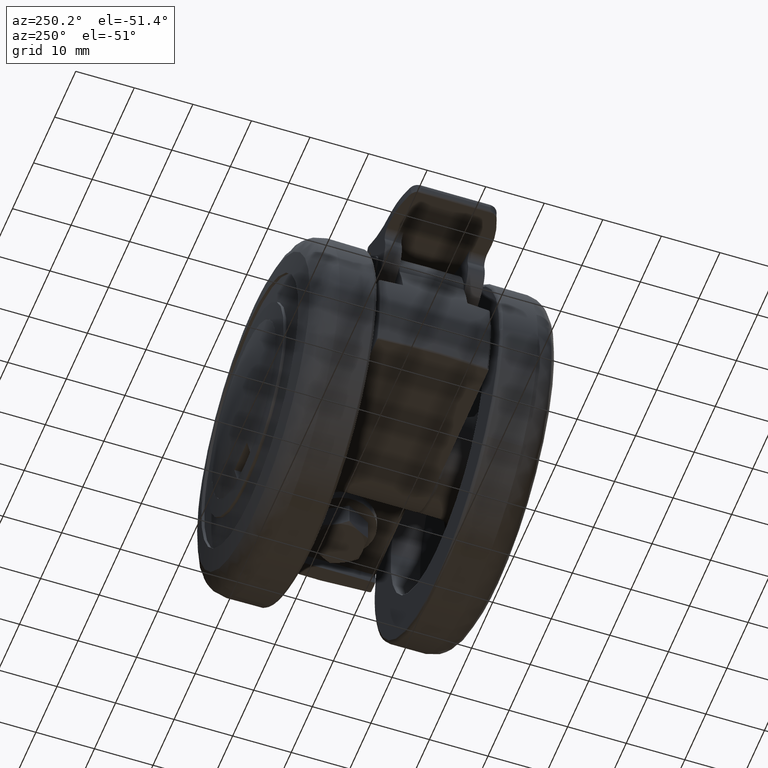
[diagram: clean part render]
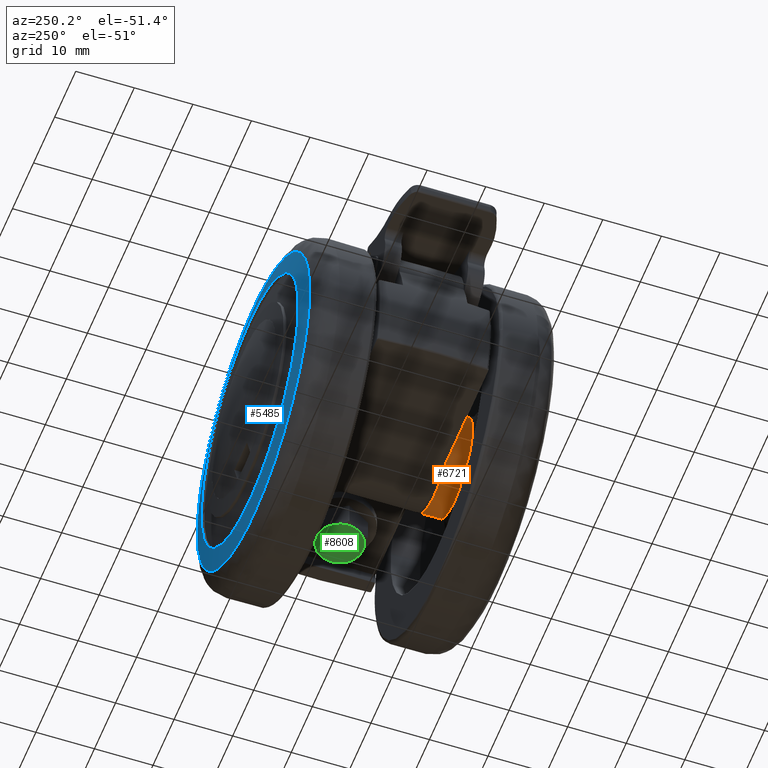
[diagram: same view with three faces highlighted in distinct colors, each labeled with its STEP entity id]
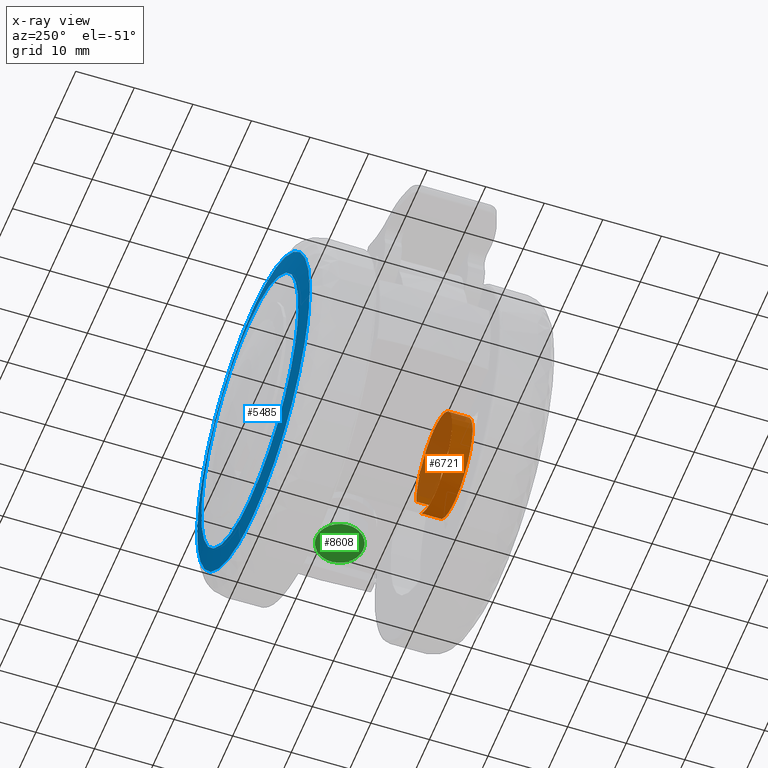
[diagram: x-ray of the same camera — body ghosted, the three highlighted faces saturated]
A machine part, auxiliary view with three faces highlighted in distinct colors.
The next image is the same camera in x-ray (body ghosted, the three faces saturated) — at least one of them is partly hidden behind the body in this view.
Their STEP definitions:

[orange] entity #6721 — the highlighted face is a freeform B-spline surface patch.
#6525=CARTESIAN_POINT('',(6.155301365099552,-13.587500000692314,-5.861933563663406));
#6526=CARTESIAN_POINT('',(3.612635184048401,-13.587500000692309,-8.531850655906197));
#6527=CARTESIAN_POINT('',(-0.074175551736178,-13.587500000692311,-8.499676346045455));
#6528=CARTESIAN_POINT('',(-8.573851897781633,-13.587500000692309,-8.425500794309276));
#6529=CARTESIAN_POINT('',(-8.499676346045455,-13.587500000692311,0.074175551736178));
#6530=CARTESIAN_POINT('',(-8.425500794309276,-13.587500000692309,8.573851897781633));
#6531=CARTESIAN_POINT('',(0.074175551736178,-13.587500000692311,8.499676346045455));
#6532=CARTESIAN_POINT('',(8.573851897781633,-13.587500000692309,8.425500794309276));
#6533=CARTESIAN_POINT('',(8.499676346045455,-13.587500000692311,-0.074175551736178));
#6534=CARTESIAN_POINT('',(6.155301365099552,-9.910312497142067,-5.861933563663406));
#6535=CARTESIAN_POINT('',(3.612635184048401,-9.910312497142069,-8.531850655906197));
#6536=CARTESIAN_POINT('',(-0.074175551736178,-9.910312497142069,-8.499676346045455));
#6537=CARTESIAN_POINT('',(-8.573851897781633,-9.910312497142069,-8.425500794309276));
#6538=CARTESIAN_POINT('',(-8.499676346045455,-9.910312497142069,0.074175551736178));
#6539=CARTESIAN_POINT('',(-8.425500794309276,-9.910312497142069,8.573851897781633));
#6540=CARTESIAN_POINT('',(0.074175551736178,-9.910312497142069,8.499676346045455));
#6541=CARTESIAN_POINT('',(8.573851897781633,-9.910312497142069,8.425500794309276));
#6542=CARTESIAN_POINT('',(8.499676346045455,-9.910312497142069,-0.074175551736178));
#6550=(BOUNDED_SURFACE()B_SPLINE_SURFACE(2,1,((#6525,#6534),(#6526,#6535),(#6527,#6536),(#6528,#6537),(#6529,#6538),(#6530,#6539),(#6531,#6540),(#6532,#6541),(#6533,#6542)),.UNSPECIFIED.,.F.,.F.,.U.)B_SPLINE_SURFACE_WITH_KNOTS((3,2,2,2,3),(2,2),(0.0,7.323295782756319,21.406556903441551,35.489818024126777,49.573079144812013),(0.0,3.677187503550244),.UNSPECIFIED.)GEOMETRIC_REPRESENTATION_ITEM()RATIONAL_B_SPLINE_SURFACE(((0.853787705168325,0.853787705168325),(0.847695526217005,0.847695526217005),(1.0,1.0),(0.707106781186548,0.707106781186548),(1.0,1.0),(0.707106781186548,0.707106781186548),(1.0,1.0),(0.707106781186548,0.707106781186548),(1.0,1.0)))REPRESENTATION_ITEM('')SURFACE());
#6551=CARTESIAN_POINT('',(6.155301829002491,-13.500000000000020,-5.861933076543788));
#6552=VERTEX_POINT('',#6551);
#6553=CARTESIAN_POINT('',(0.0,-13.500000000000000,-8.500000000000000));
#6554=VERTEX_POINT('',#6553);
#6555=CARTESIAN_POINT('',(6.155301829002492,-13.500000000000023,-5.861933076543788));
#6556=CARTESIAN_POINT('',(3.642968602165949,-13.500000000000004,-8.500000000000000));
#6557=CARTESIAN_POINT('',(0.0,-13.500000000000000,-8.500000000000000));
#6565=(BOUNDED_CURVE()B_SPLINE_CURVE(2,(#6555,#6556,#6557),.UNSPECIFIED.,.F.,.U.)B_SPLINE_CURVE_WITH_KNOTS((3,3),(0.871316999963881,1.0),.UNSPECIFIED.)CURVE()GEOMETRIC_REPRESENTATION_ITEM()RATIONAL_B_SPLINE_CURVE((0.853680524894800,0.849238487651398,1.0))REPRESENTATION_ITEM(''));
#6566=EDGE_CURVE('',#6552,#6554,#6565,.T.);
#6567=ORIENTED_EDGE('',*,*,#6566,.T.);
#6568=CARTESIAN_POINT('',(-3.003066716672469,-13.500000000569329,-7.951829367838196));
#6569=VERTEX_POINT('',#6568);
#6570=CARTESIAN_POINT('',(0.0,-13.500000000000000,-8.500000000000000));
#6571=CARTESIAN_POINT('',(-1.551564055373498,-13.499999999999998,-8.500000000000000));
#6572=CARTESIAN_POINT('',(-3.003066716672470,-13.500000000569331,-7.951829367838196));
#6580=(BOUNDED_CURVE()B_SPLINE_CURVE(2,(#6570,#6571,#6572),.UNSPECIFIED.,.F.,.U.)B_SPLINE_CURVE_WITH_KNOTS((3,3),(0.0,0.060000000002447),.UNSPECIFIED.)CURVE()GEOMETRIC_REPRESENTATION_ITEM()RATIONAL_B_SPLINE_CURVE((1.0,0.929705627481905,0.893152553773871))REPRESENTATION_ITEM(''));
#6581=EDGE_CURVE('',#6554,#6569,#6580,.T.);
#6582=ORIENTED_EDGE('',*,*,#6581,.T.);
#6583=CARTESIAN_POINT('',(-8.500000000000000,-13.500000000607830,4.437074E-016));
#6584=VERTEX_POINT('',#6583);
#6585=CARTESIAN_POINT('',(-3.003066716672470,-13.500000000569324,-7.951829367838196));
#6586=CARTESIAN_POINT('',(-8.500000000000007,-13.500000000000000,-5.875872173122279));
#6587=CARTESIAN_POINT('',(-8.500000000000004,-13.500000000607839,4.437074E-016));
#6595=(BOUNDED_CURVE()B_SPLINE_CURVE(2,(#6585,#6586,#6587),.UNSPECIFIED.,.F.,.U.)B_SPLINE_CURVE_WITH_KNOTS((3,3),(0.060000000002447,0.250000000000000),.UNSPECIFIED.)CURVE()GEOMETRIC_REPRESENTATION_ITEM()RATIONAL_B_SPLINE_CURVE((0.893152553773871,0.777401153704643,1.0))REPRESENTATION_ITEM(''));
#6596=EDGE_CURVE('',#6569,#6584,#6595,.T.);
#6597=ORIENTED_EDGE('',*,*,#6596,.T.);
#6598=CARTESIAN_POINT('',(0.0,-13.500000000000000,8.500000000000000));
#6599=VERTEX_POINT('',#6598);
#6600=CARTESIAN_POINT('',(-8.500000000000000,-13.500000000607834,4.437074E-016));
#6601=CARTESIAN_POINT('',(-8.499999999999996,-13.500000000000000,8.499999999999998));
#6602=CARTESIAN_POINT('',(0.0,-13.500000000000000,8.500000000000000));
#6610=(BOUNDED_CURVE()B_SPLINE_CURVE(2,(#6600,#6601,#6602),.UNSPECIFIED.,.F.,.U.)B_SPLINE_CURVE_WITH_KNOTS((3,3),(0.250000000000000,0.500000000000000),.UNSPECIFIED.)CURVE()GEOMETRIC_REPRESENTATION_ITEM()RATIONAL_B_SPLINE_CURVE((1.000000000000000,0.707106781186548,1.0))REPRESENTATION_ITEM(''));
#6611=EDGE_CURVE('',#6584,#6599,#6610,.T.);
#6612=ORIENTED_EDGE('',*,*,#6611,.T.);
#6613=CARTESIAN_POINT('',(8.499676346044717,-13.500000000000000,-0.074175551820762));
#6614=VERTEX_POINT('',#6613);
#6615=CARTESIAN_POINT('',(0.0,-13.500000000000000,8.500000000000000));
#6616=CARTESIAN_POINT('',(8.500000000000002,-13.500000000000000,8.500000000000002));
#6617=CARTESIAN_POINT('',(8.500000000000000,-13.500000000000000,0.0));
#6618=CARTESIAN_POINT('',(8.500000000000000,-13.500000000000002,-0.037088482060550));
#6619=CARTESIAN_POINT('',(8.499676346044717,-13.499999999999998,-0.074175551820762));
#6627=(BOUNDED_CURVE()B_SPLINE_CURVE(2,(#6615,#6616,#6617,#6618,#6619),.UNSPECIFIED.,.F.,.U.)B_SPLINE_CURVE_WITH_KNOTS((3,2,3),(0.500000000000000,0.750000000000000,0.751539894338493),.UNSPECIFIED.)CURVE()GEOMETRIC_REPRESENTATION_ITEM()RATIONAL_B_SPLINE_CURVE((1.0,0.707106781186548,1.0,0.998195901562265,0.996414028092293))REPRESENTATION_ITEM(''));
#6628=EDGE_CURVE('',#6599,#6614,#6627,.T.);
#6629=ORIENTED_EDGE('',*,*,#6628,.T.);
#6630=CARTESIAN_POINT('',(8.499676346044819,-10.0,-0.074175551809084));
#6631=VERTEX_POINT('',#6630);
#6632=CARTESIAN_POINT('',(8.499676346044717,-13.500000000000000,-0.074175551820762));
#6633=CARTESIAN_POINT('',(8.499676346044819,-10.0,-0.074175551809084));
#6634=QUASI_UNIFORM_CURVE('',1,(#6632,#6633),.UNSPECIFIED.,.F.,.U.);
#6635=EDGE_CURVE('',#6614,#6631,#6634,.T.);
#6636=ORIENTED_EDGE('',*,*,#6635,.T.);
#6637=CARTESIAN_POINT('',(0.0,-10.0,8.500000000000000));
#6638=VERTEX_POINT('',#6637);
#6639=CARTESIAN_POINT('',(8.499676346044819,-10.0,-0.074175551809084));
#6640=CARTESIAN_POINT('',(8.500000000000002,-10.000000000000002,-0.037088482048874));
#6641=CARTESIAN_POINT('',(8.500000000000000,-10.0,0.0));
#6642=CARTESIAN_POINT('',(8.500000000000002,-10.000000000000002,8.500000000000002));
#6643=CARTESIAN_POINT('',(0.0,-10.0,8.500000000000000));
#6651=(BOUNDED_CURVE()B_SPLINE_CURVE(2,(#6639,#6640,#6641,#6642,#6643),.UNSPECIFIED.,.F.,.U.)B_SPLINE_CURVE_WITH_KNOTS((3,2,3),(0.248460105661991,0.250000000000000,0.500000000000000),.UNSPECIFIED.)CURVE()GEOMETRIC_REPRESENTATION_ITEM()RATIONAL_B_SPLINE_CURVE((0.996414028093413,0.998195901562832,1.0,0.707106781186548,1.0))REPRESENTATION_ITEM(''));
#6652=EDGE_CURVE('',#6631,#6638,#6651,.T.);
#6653=ORIENTED_EDGE('',*,*,#6652,.T.);
#6654=CARTESIAN_POINT('',(-8.500000000000000,-9.999999997410585,4.573965E-014));
#6655=VERTEX_POINT('',#6654);
#6656=CARTESIAN_POINT('',(0.0,-10.0,8.500000000000000));
#6657=CARTESIAN_POINT('',(-8.499999999999957,-10.0,8.500000000000000));
#6658=CARTESIAN_POINT('',(-8.500000000000000,-9.999999997410585,4.573965E-014));
#6666=(BOUNDED_CURVE()B_SPLINE_CURVE(2,(#6656,#6657,#6658),.UNSPECIFIED.,.F.,.U.)B_SPLINE_CURVE_WITH_KNOTS((3,3),(0.500000000000000,0.749999999999999),.UNSPECIFIED.)CURVE()GEOMETRIC_REPRESENTATION_ITEM()RATIONAL_B_SPLINE_CURVE((1.0,0.707106781186549,0.999999999999998))REPRESENTATION_ITEM(''));
#6667=EDGE_CURVE('',#6638,#6655,#6666,.T.);
#6668=ORIENTED_EDGE('',*,*,#6667,.T.);
#6669=CARTESIAN_POINT('',(-3.003066716634145,-9.999999997228660,-7.951829367852669));
#6670=VERTEX_POINT('',#6669);
#6671=CARTESIAN_POINT('',(-8.500000000000004,-9.999999997410590,4.573965E-014));
#6672=CARTESIAN_POINT('',(-8.500000000000062,-10.0,-5.875872173182831));
#6673=CARTESIAN_POINT('',(-3.003066716634146,-9.999999997228658,-7.951829367852669));
#6681=(BOUNDED_CURVE()B_SPLINE_CURVE(2,(#6671,#6672,#6673),.UNSPECIFIED.,.F.,.U.)B_SPLINE_CURVE_WITH_KNOTS((3,3),(0.749999999999998,0.939999999999076),.UNSPECIFIED.)CURVE()GEOMETRIC_REPRESENTATION_ITEM()RATIONAL_B_SPLINE_CURVE((1.000000000000004,0.777401153702858,0.893152553775726))REPRESENTATION_ITEM(''));
#6682=EDGE_CURVE('',#6655,#6670,#6681,.T.);
#6683=ORIENTED_EDGE('',*,*,#6682,.T.);
#6684=CARTESIAN_POINT('',(0.0,-10.0,-8.500000000000000));
#6685=VERTEX_POINT('',#6684);
#6686=CARTESIAN_POINT('',(-3.003066716634145,-9.999999997228658,-7.951829367852669));
#6687=CARTESIAN_POINT('',(-1.551564055331168,-10.0,-8.500000000000000));
#6688=CARTESIAN_POINT('',(0.0,-10.0,-8.500000000000000));
#6696=(BOUNDED_CURVE()B_SPLINE_CURVE(2,(#6686,#6687,#6688),.UNSPECIFIED.,.F.,.U.)B_SPLINE_CURVE_WITH_KNOTS((3,3),(0.939999999999075,1.0),.UNSPECIFIED.)CURVE()GEOMETRIC_REPRESENTATION_ITEM()RATIONAL_B_SPLINE_CURVE((0.893152553775725,0.929705627483688,1.0))REPRESENTATION_ITEM(''));
#6697=EDGE_CURVE('',#6670,#6685,#6696,.T.);
#6698=ORIENTED_EDGE('',*,*,#6697,.T.);
#6699=CARTESIAN_POINT('',(6.155301591505830,-10.0,-5.861933325926326));
#6700=VERTEX_POINT('',#6699);
#6701=CARTESIAN_POINT('',(0.0,-10.0,-8.500000000000000));
#6702=CARTESIAN_POINT('',(3.642968194530800,-10.0,-8.500000000000002));
#6703=CARTESIAN_POINT('',(6.155301591505830,-10.0,-5.861933325926327));
#6711=(BOUNDED_CURVE()B_SPLINE_CURVE(2,(#6701,#6702,#6703),.UNSPECIFIED.,.F.,.U.)B_SPLINE_CURVE_WITH_KNOTS((3,3),(0.0,0.128682987807792),.UNSPECIFIED.)CURVE()GEOMETRIC_REPRESENTATION_ITEM()RATIONAL_B_SPLINE_CURVE((1.0,0.849238501977774,0.853680524050577))REPRESENTATION_ITEM(''));
#6712=EDGE_CURVE('',#6685,#6700,#6711,.T.);
#6713=ORIENTED_EDGE('',*,*,#6712,.T.);
#6714=CARTESIAN_POINT('',(6.155301829002491,-13.500000000000020,-5.861933076543788));
#6715=CARTESIAN_POINT('',(6.155301591505830,-10.0,-5.861933325926326));
#6716=QUASI_UNIFORM_CURVE('',1,(#6714,#6715),.UNSPECIFIED.,.F.,.U.);
#6717=EDGE_CURVE('',#6552,#6700,#6716,.T.);
#6718=ORIENTED_EDGE('',*,*,#6717,.F.);
#6719=EDGE_LOOP('',(#6567,#6582,#6597,#6612,#6629,#6636,#6653,#6668,#6683,#6698,#6713,#6718));
#6720=FACE_OUTER_BOUND('',#6719,.T.);
#6721=ADVANCED_FACE('',(#6720),#6550,.T.);

[blue] entity #5485 — the highlighted face is a freeform B-spline surface patch.
#3889=CARTESIAN_POINT('',(-22.929098987231040,21.478063524577699,-1.804555245412127));
#3890=VERTEX_POINT('',#3889);
#3896=CARTESIAN_POINT('',(0.0,21.478063524577699,23.000000000000011));
#3897=VERTEX_POINT('',#3896);
#3898=CARTESIAN_POINT('',(-22.929098987231050,21.478063524577699,-1.804555245412127));
#3899=CARTESIAN_POINT('',(-23.000000000000007,21.478063524577699,-0.903670473832242));
#3900=CARTESIAN_POINT('',(-23.0,21.478063524577699,7.890652E-015));
#3901=CARTESIAN_POINT('',(-22.999999999999993,21.478063524577699,23.000000000000007));
#3902=CARTESIAN_POINT('',(0.0,21.478063524577699,23.000000000000011));
#3910=(BOUNDED_CURVE()B_SPLINE_CURVE(2,(#3898,#3899,#3900,#3901,#3902),.UNSPECIFIED.,.F.,.U.)B_SPLINE_CURVE_WITH_KNOTS((3,2,3),(0.736331330211408,0.750000000000000,1.0),.UNSPECIFIED.)CURVE()GEOMETRIC_REPRESENTATION_ITEM()RATIONAL_B_SPLINE_CURVE((0.969723417900191,0.983986157234884,1.0,0.707106781186548,1.0))REPRESENTATION_ITEM(''));
#3911=EDGE_CURVE('',#3890,#3897,#3910,.T.);
#3913=CARTESIAN_POINT('',(22.929098987231040,21.478063524577699,1.804555245412127));
#3914=VERTEX_POINT('',#3913);
#3915=CARTESIAN_POINT('',(0.0,21.478063524577699,23.000000000000011));
#3916=CARTESIAN_POINT('',(21.260984987983782,21.478063524577703,23.000000000000007));
#3917=CARTESIAN_POINT('',(22.929098987231040,21.478063524577699,1.804555245412127));
#3925=(BOUNDED_CURVE()B_SPLINE_CURVE(2,(#3915,#3916,#3917),.UNSPECIFIED.,.F.,.U.)B_SPLINE_CURVE_WITH_KNOTS((3,3),(0.0,0.236331330211408),.UNSPECIFIED.)CURVE()GEOMETRIC_REPRESENTATION_ITEM()RATIONAL_B_SPLINE_CURVE((1.0,0.723120623951663,0.969723417900191))REPRESENTATION_ITEM(''));
#3926=EDGE_CURVE('',#3897,#3914,#3925,.T.);
#3972=CARTESIAN_POINT('',(0.0,21.478063524577699,-22.999999999999989));
#3973=VERTEX_POINT('',#3972);
#3974=CARTESIAN_POINT('',(22.929098987231040,21.478063524577699,1.804555245412127));
#3975=CARTESIAN_POINT('',(23.0,21.478063524577696,0.903670473832250));
#3976=CARTESIAN_POINT('',(23.0,21.478063524577699,7.890652E-015));
#3977=CARTESIAN_POINT('',(22.999999999999993,21.478063524577699,-22.999999999999993));
#3978=CARTESIAN_POINT('',(0.0,21.478063524577699,-22.999999999999989));
#3986=(BOUNDED_CURVE()B_SPLINE_CURVE(2,(#3974,#3975,#3976,#3977,#3978),.UNSPECIFIED.,.F.,.U.)B_SPLINE_CURVE_WITH_KNOTS((3,2,3),(0.236331330211408,0.250000000000000,0.500000000000000),.UNSPECIFIED.)CURVE()GEOMETRIC_REPRESENTATION_ITEM()RATIONAL_B_SPLINE_CURVE((0.969723417900191,0.983986157234884,1.0,0.707106781186548,1.0))REPRESENTATION_ITEM(''));
#3987=EDGE_CURVE('',#3914,#3973,#3986,.T.);
#3989=CARTESIAN_POINT('',(0.0,21.478063524577699,-22.999999999999989));
#3990=CARTESIAN_POINT('',(-21.260984987983761,21.478063524577696,-22.999999999999986));
#3991=CARTESIAN_POINT('',(-22.929098987231050,21.478063524577699,-1.804555245412127));
#3999=(BOUNDED_CURVE()B_SPLINE_CURVE(2,(#3989,#3990,#3991),.UNSPECIFIED.,.F.,.U.)B_SPLINE_CURVE_WITH_KNOTS((3,3),(0.500000000000000,0.736331330211408),.UNSPECIFIED.)CURVE()GEOMETRIC_REPRESENTATION_ITEM()RATIONAL_B_SPLINE_CURVE((1.0,0.723120623951664,0.969723417900191))REPRESENTATION_ITEM(''));
#4000=EDGE_CURVE('',#3973,#3890,#3999,.T.);
#5021=CARTESIAN_POINT('',(26.065071559120351,20.854227348020441,5.844705521983595));
#5022=VERTEX_POINT('',#5021);
#5036=CARTESIAN_POINT('',(0.0,20.854227333449700,26.712329319606411));
#5037=VERTEX_POINT('',#5036);
#5038=CARTESIAN_POINT('',(0.0,20.854227333449700,26.712329319606411));
#5039=CARTESIAN_POINT('',(21.385816566820569,20.854227333449693,26.712329319606411));
#5040=CARTESIAN_POINT('',(26.065071559120348,20.854227348020441,5.844705521983596));
#5048=(BOUNDED_CURVE()B_SPLINE_CURVE(2,(#5038,#5039,#5040),.UNSPECIFIED.,.F.,.U.)B_SPLINE_CURVE_WITH_KNOTS((3,3),(0.0,0.212563823273568),.UNSPECIFIED.)CURVE()GEOMETRIC_REPRESENTATION_ITEM()RATIONAL_B_SPLINE_CURVE((1.0,0.750965990392444,0.925416950443516))REPRESENTATION_ITEM(''));
#5049=EDGE_CURVE('',#5037,#5022,#5048,.T.);
#5051=CARTESIAN_POINT('',(-26.356679879683540,20.854227348631529,-4.344417516797684));
#5052=VERTEX_POINT('',#5051);
#5053=CARTESIAN_POINT('',(-26.356679879683547,20.854227348631522,-4.344417516797684));
#5054=CARTESIAN_POINT('',(-26.712329319606397,20.854227333449703,-2.186766121231665));
#5055=CARTESIAN_POINT('',(-26.712329319606400,20.854227333449700,7.661466E-015));
#5056=CARTESIAN_POINT('',(-26.712329319606397,20.854227333449693,26.712329319606397));
#5057=CARTESIAN_POINT('',(0.0,20.854227333449700,26.712329319606411));
#5065=(BOUNDED_CURVE()B_SPLINE_CURVE(2,(#5053,#5054,#5055,#5056,#5057),.UNSPECIFIED.,.F.,.U.)B_SPLINE_CURVE_WITH_KNOTS((3,2,3),(0.722006108799314,0.750000000000000,1.0),.UNSPECIFIED.)CURVE()GEOMETRIC_REPRESENTATION_ITEM()RATIONAL_B_SPLINE_CURVE((0.941751131923491,0.967203116396471,1.0,0.707106781186548,1.0))REPRESENTATION_ITEM(''));
#5066=EDGE_CURVE('',#5052,#5037,#5065,.T.);
#5119=CARTESIAN_POINT('',(0.0,20.854227333449700,-26.712329319606390));
#5120=VERTEX_POINT('',#5119);
#5121=CARTESIAN_POINT('',(0.0,20.854227333449700,-26.712329319606390));
#5122=CARTESIAN_POINT('',(-22.669737959272577,20.854227333449700,-26.712329319606393));
#5123=CARTESIAN_POINT('',(-26.356679879683544,20.854227348631529,-4.344417516797684));
#5131=(BOUNDED_CURVE()B_SPLINE_CURVE(2,(#5121,#5122,#5123),.UNSPECIFIED.,.F.,.U.)B_SPLINE_CURVE_WITH_KNOTS((3,3),(0.500000000000000,0.722006108799315),.UNSPECIFIED.)CURVE()GEOMETRIC_REPRESENTATION_ITEM()RATIONAL_B_SPLINE_CURVE((1.0,0.739903664790076,0.941751131923493))REPRESENTATION_ITEM(''));
#5132=EDGE_CURVE('',#5120,#5052,#5131,.T.);
#5134=CARTESIAN_POINT('',(26.065071559120351,20.854227348020434,5.844705521983595));
#5135=CARTESIAN_POINT('',(26.712329319606404,20.854227333449700,2.958192257836088));
#5136=CARTESIAN_POINT('',(26.712329319606400,20.854227333449700,7.661466E-015));
#5137=CARTESIAN_POINT('',(26.712329319606397,20.854227333449693,-26.712329319606397));
#5138=CARTESIAN_POINT('',(0.0,20.854227333449700,-26.712329319606390));
#5146=(BOUNDED_CURVE()B_SPLINE_CURVE(2,(#5134,#5135,#5136,#5137,#5138),.UNSPECIFIED.,.F.,.U.)B_SPLINE_CURVE_WITH_KNOTS((3,2,3),(0.212563823273567,0.250000000000000,0.500000000000000),.UNSPECIFIED.)CURVE()GEOMETRIC_REPRESENTATION_ITEM()RATIONAL_B_SPLINE_CURVE((0.925416950443515,0.956140790794104,1.0,0.707106781186548,1.0))REPRESENTATION_ITEM(''));
#5147=EDGE_CURVE('',#5022,#5120,#5146,.T.);
#5449=CARTESIAN_POINT('',(-29.049700462980695,17.516002156330767,29.051323620715696));
#5450=CARTESIAN_POINT('',(-14.665037291293439,20.356101760267556,29.331713406281040));
#5451=CARTESIAN_POINT('',(14.663489103366622,20.356101760267556,29.331713406281040));
#5452=CARTESIAN_POINT('',(29.046692309353446,17.516596052487230,29.051382253312855));
#5453=CARTESIAN_POINT('',(-29.330106217824131,20.356422215040194,14.665872521642957));
#5454=CARTESIAN_POINT('',(-14.807972890327511,23.251884999999959,14.808800288729341));
#5455=CARTESIAN_POINT('',(14.806409612690089,23.251884999999959,14.808800288729341));
#5456=CARTESIAN_POINT('',(29.327069598959490,20.357027631852848,14.665902406631844));
#5457=CARTESIAN_POINT('',(-29.330106217824131,20.356422215040194,-14.665873821931163));
#5458=CARTESIAN_POINT('',(-14.807972890327511,23.251884999999959,-14.808801601689639));
#5459=CARTESIAN_POINT('',(14.806409612690089,23.251884999999959,-14.808801601689639));
#5460=CARTESIAN_POINT('',(29.327069598959490,20.357027631852848,-14.665903706922700));
#5461=CARTESIAN_POINT('',(-29.049700413734055,17.516001657478075,-29.051326147180330));
#5462=CARTESIAN_POINT('',(-14.665037266192506,20.356101251738988,-29.331715956649987));
#5463=CARTESIAN_POINT('',(14.663489078268340,20.356101251738988,-29.331715956649987));
#5464=CARTESIAN_POINT('',(29.046692260111804,17.516595553632520,-29.051384779782492));
#5472=(BOUNDED_SURFACE()B_SPLINE_SURFACE(2,2,((#5449,#5453,#5457,#5461),(#5450,#5454,#5458,#5462),(#5451,#5455,#5459,#5463),(#5452,#5456,#5460,#5464)),.UNSPECIFIED.,.F.,.F.,.U.)B_SPLINE_SURFACE_WITH_KNOTS((3,1,3),(3,1,3),(41.700309630584719,70.475174581871173,99.247001770782475),(41.698701829338077,70.475174581871173,99.251649885749814),.UNSPECIFIED.)GEOMETRIC_REPRESENTATION_ITEM()RATIONAL_B_SPLINE_SURFACE(((1.019492294538318,1.009745602716474,1.009745602716474,1.019492296266617),(1.009746691821843,1.0,1.0,1.009746693550143),(1.009746691821843,1.0,1.0,1.009746693550143),(1.019490236960455,1.009743545138612,1.009743545138612,1.019490238688754)))REPRESENTATION_ITEM('')SURFACE());
#5473=ORIENTED_EDGE('',*,*,#5049,.T.);
#5474=ORIENTED_EDGE('',*,*,#5147,.T.);
#5475=ORIENTED_EDGE('',*,*,#5132,.T.);
#5476=ORIENTED_EDGE('',*,*,#5066,.T.);
#5477=EDGE_LOOP('',(#5473,#5474,#5475,#5476));
#5478=FACE_OUTER_BOUND('',#5477,.T.);
#5479=ORIENTED_EDGE('',*,*,#4000,.F.);
#5480=ORIENTED_EDGE('',*,*,#3987,.F.);
#5481=ORIENTED_EDGE('',*,*,#3926,.F.);
#5482=ORIENTED_EDGE('',*,*,#3911,.F.);
#5483=EDGE_LOOP('',(#5479,#5480,#5481,#5482));
#5484=FACE_BOUND('',#5483,.T.);
#5485=ADVANCED_FACE('',(#5478,#5484),#5472,.T.);

[green] entity #8608 — the highlighted face is a freeform B-spline surface patch.
#8511=CARTESIAN_POINT('',(12.600399964701360,4.399599984494448,-5.049999999999900));
#8512=CARTESIAN_POINT('',(21.399600201488109,4.399599984494448,-5.049999999999900));
#8513=CARTESIAN_POINT('',(12.600399964701360,-4.399600199071169,-5.049999999999900));
#8514=CARTESIAN_POINT('',(21.399600201488109,-4.399600199071169,-5.049999999999900));
#8515=B_SPLINE_SURFACE_WITH_KNOTS('',1,1,((#8511,#8513),(#8512,#8514)),.UNSPECIFIED.,.F.,.F.,.U.,(2,2),(2,2),(0.0,8.799200236786751),(0.0,8.799200183565617),.UNSPECIFIED.);
#8516=CARTESIAN_POINT('',(13.535898442431140,-1.999999900287780,-5.049999999999900));
#8517=VERTEX_POINT('',#8516);
#8518=CARTESIAN_POINT('',(17.0,-4.0,-5.049999999999890));
#8519=VERTEX_POINT('',#8518);
#8520=CARTESIAN_POINT('',(13.535898442431140,-1.999999900287780,-5.049999999999900));
#8521=CARTESIAN_POINT('',(14.690598884862249,-4.0,-5.049999999999901));
#8522=CARTESIAN_POINT('',(17.0,-4.0,-5.049999999999900));
#8530=(BOUNDED_CURVE()B_SPLINE_CURVE(2,(#8520,#8521,#8522),.UNSPECIFIED.,.F.,.U.)CURVE()GEOMETRIC_REPRESENTATION_ITEM()QUASI_UNIFORM_CURVE()RATIONAL_B_SPLINE_CURVE((1.0,0.866025400186384,1.0))REPRESENTATION_ITEM(''));
#8531=EDGE_CURVE('',#8517,#8519,#8530,.T.);
#8532=ORIENTED_EDGE('',*,*,#8531,.F.);
#8533=CARTESIAN_POINT('',(13.535898356077800,1.999999950143895,-5.049999999999890));
#8534=VERTEX_POINT('',#8533);
#8535=CARTESIAN_POINT('',(13.535898356077810,1.999999950143889,-5.049999999999900));
#8536=CARTESIAN_POINT('',(12.381197884862248,-3.469447E-015,-5.049999999999900));
#8537=CARTESIAN_POINT('',(13.535898442431140,-1.999999900287780,-5.049999999999900));
#8545=(BOUNDED_CURVE()B_SPLINE_CURVE(2,(#8535,#8536,#8537),.UNSPECIFIED.,.F.,.U.)CURVE()GEOMETRIC_REPRESENTATION_ITEM()QUASI_UNIFORM_CURVE()RATIONAL_B_SPLINE_CURVE((1.0,0.866025410980548,1.0))REPRESENTATION_ITEM(''));
#8546=EDGE_CURVE('',#8534,#8517,#8545,.T.);
#8547=ORIENTED_EDGE('',*,*,#8546,.F.);
#8548=CARTESIAN_POINT('',(17.0,4.0,-5.049999999999890));
#8549=VERTEX_POINT('',#8548);
#8550=CARTESIAN_POINT('',(13.535898356077810,1.999999950143890,-5.049999999999890));
#8551=CARTESIAN_POINT('',(14.690598884862245,4.000000000000000,-5.049999999999890));
#8552=CARTESIAN_POINT('',(17.0,4.0,-5.049999999999890));
#8560=(BOUNDED_CURVE()B_SPLINE_CURVE(2,(#8550,#8551,#8552),.UNSPECIFIED.,.F.,.U.)CURVE()GEOMETRIC_REPRESENTATION_ITEM()QUASI_UNIFORM_CURVE()RATIONAL_B_SPLINE_CURVE((1.0,0.866025400186384,1.0))REPRESENTATION_ITEM(''));
#8561=EDGE_CURVE('',#8534,#8549,#8560,.T.);
#8562=ORIENTED_EDGE('',*,*,#8561,.T.);
#8563=CARTESIAN_POINT('',(20.464101268922050,2.000000599663040,-5.049999999999890));
#8564=VERTEX_POINT('',#8563);
#8565=CARTESIAN_POINT('',(20.464101268922061,2.000000599663047,-5.049999999999900));
#8566=CARTESIAN_POINT('',(19.309400615137680,4.000000000000001,-5.049999999999900));
#8567=CARTESIAN_POINT('',(17.0,4.0,-5.049999999999900));
#8575=(BOUNDED_CURVE()B_SPLINE_CURVE(2,(#8565,#8566,#8567),.UNSPECIFIED.,.F.,.U.)CURVE()GEOMETRIC_REPRESENTATION_ITEM()QUASI_UNIFORM_CURVE()RATIONAL_B_SPLINE_CURVE((1.0,0.866025447061390,1.0))REPRESENTATION_ITEM(''));
#8576=EDGE_CURVE('',#8564,#8549,#8575,.T.);
#8577=ORIENTED_EDGE('',*,*,#8576,.F.);
#8578=CARTESIAN_POINT('',(20.464101268922050,-2.000000599663040,-5.049999999999890));
#8579=VERTEX_POINT('',#8578);
#8580=CARTESIAN_POINT('',(20.464101268922061,-2.000000599663048,-5.049999999999900));
#8581=CARTESIAN_POINT('',(21.618802615137973,-8.673617E-016,-5.049999999999900));
#8582=CARTESIAN_POINT('',(20.464101268922061,2.000000599663047,-5.049999999999900));
#8590=(BOUNDED_CURVE()B_SPLINE_CURVE(2,(#8580,#8581,#8582),.UNSPECIFIED.,.F.,.U.)CURVE()GEOMETRIC_REPRESENTATION_ITEM()QUASI_UNIFORM_CURVE()RATIONAL_B_SPLINE_CURVE((1.0,0.866025317230516,1.0))REPRESENTATION_ITEM(''));
#8591=EDGE_CURVE('',#8579,#8564,#8590,.T.);
#8592=ORIENTED_EDGE('',*,*,#8591,.F.);
#8593=CARTESIAN_POINT('',(17.0,-4.0,-5.049999999999900));
#8594=CARTESIAN_POINT('',(19.309400615137676,-4.000000000000001,-5.049999999999900));
#8595=CARTESIAN_POINT('',(20.464101268922061,-2.000000599663048,-5.049999999999900));
#8603=(BOUNDED_CURVE()B_SPLINE_CURVE(2,(#8593,#8594,#8595),.UNSPECIFIED.,.F.,.U.)CURVE()GEOMETRIC_REPRESENTATION_ITEM()QUASI_UNIFORM_CURVE()RATIONAL_B_SPLINE_CURVE((1.0,0.866025447061390,1.0))REPRESENTATION_ITEM(''));
#8604=EDGE_CURVE('',#8519,#8579,#8603,.T.);
#8605=ORIENTED_EDGE('',*,*,#8604,.F.);
#8606=EDGE_LOOP('',(#8532,#8547,#8562,#8577,#8592,#8605));
#8607=FACE_OUTER_BOUND('',#8606,.T.);
#8608=ADVANCED_FACE('',(#8607),#8515,.T.);